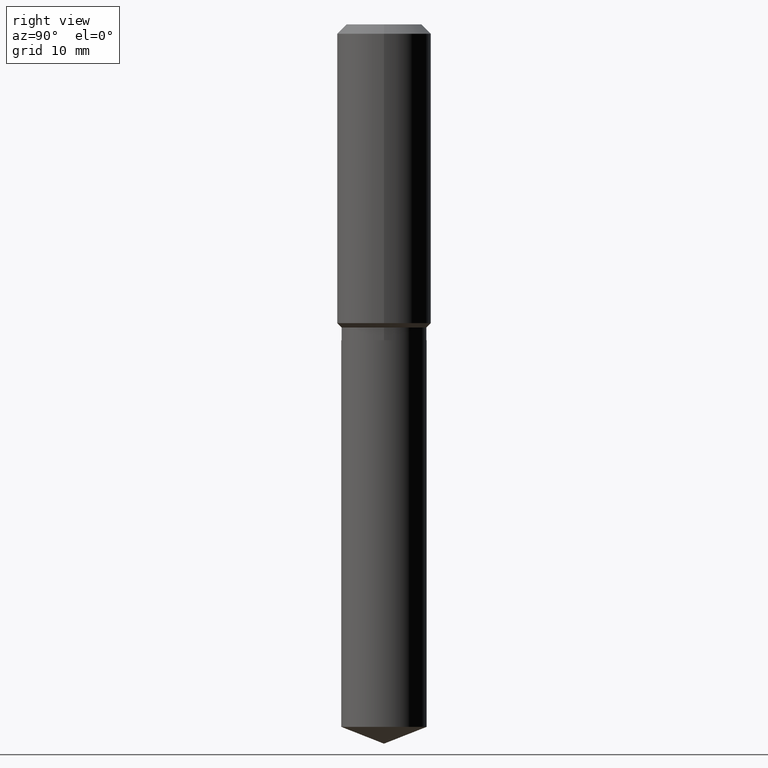
[diagram: clean part render]
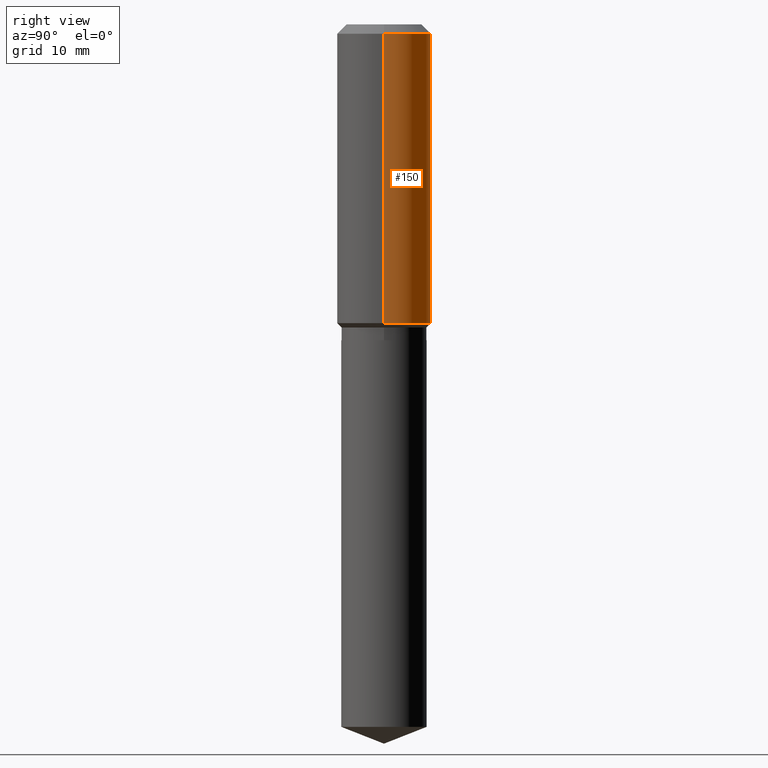
[diagram: same view with one face highlighted and labeled with its STEP entity id]
A machine part, right view. The second image highlights one B-rep face of the part: STEP entity #150.
In plain terms, the highlighted cylindrical surface (partial cylindrical patch) has radius 7.0002 mm, axis along (-0, 0, 1).
Its self-contained STEP definition (entity closure, byte-faithful):
#10 = CARTESIAN_POINT ( 'NONE',  ( 1.347942405969256063E-30, -1.924504513970354330E-16, -0.05512000000000035621 ) ) ;
#27 = CARTESIAN_POINT ( 'NONE',  ( 0.2756000000000001227, -1.924504513970336137E-15, 1.343874319409360548E-29 ) ) ;
#29 = VECTOR ( 'NONE', #488, 39.37007874015748143 ) ;
#31 = LINE ( 'NONE', #75, #160 ) ;
#51 = VERTEX_POINT ( 'NONE', #358 ) ;
#59 = CARTESIAN_POINT ( 'NONE',  ( -0.2756000000000000116, -1.192666469297548903E-15, -0.05512000000000035621 ) ) ;
#65 = VERTEX_POINT ( 'NONE', #111 ) ;
#75 = CARTESIAN_POINT ( 'NONE',  ( -0.2756000000000001227, 1.958255779754836984E-15, -1.355658510874252567E-29 ) ) ;
#90 = DIRECTION ( 'NONE',  ( 1.000000000000000000, -6.982962677686267499E-15, 0.000000000000000000 ) ) ;
#94 = DIRECTION ( 'NONE',  ( -2.445468806185136597E-29, 3.491481338843145583E-15, 1.000000000000000000 ) ) ;
#101 = AXIS2_PLACEMENT_3D ( 'NONE', #10, #166, #410 ) ;
#106 = DIRECTION ( 'NONE',  ( -2.445468806185136597E-29, 3.491481338843145583E-15, 1.000000000000000000 ) ) ;
#111 = CARTESIAN_POINT ( 'NONE',  ( 0.2756000000000002337, -8.033898560678073390E-15, -1.749800000000000244 ) ) ;
#140 = VERTEX_POINT ( 'NONE', #198 ) ;
#144 = DIRECTION ( 'NONE',  ( 1.000000000000000000, -6.982962677686267499E-15, 4.876176775795935793E-29 ) ) ;
#146 = CIRCLE ( 'NONE', #407, 0.2756000000000002337 ) ;
#150 = ADVANCED_FACE ( 'NONE', ( #271 ), #429, .T. ) ;
#155 = DIRECTION ( 'NONE',  ( -2.445468806185136877E-29, 3.491481338843145188E-15, 1.000000000000000000 ) ) ;
#160 = VECTOR ( 'NONE', #155, 39.37007874015748143 ) ;
#166 = DIRECTION ( 'NONE',  ( -2.445468806185136597E-29, 3.491481338843145583E-15, 1.000000000000000000 ) ) ;
#170 = EDGE_CURVE ( 'NONE', #65, #51, #400, .T. ) ;
#198 = CARTESIAN_POINT ( 'NONE',  ( -0.2756000000000002337, -4.151138266952899480E-15, -1.749800000000000244 ) ) ;
#216 = EDGE_CURVE ( 'NONE', #51, #458, #296, .T. ) ;
#220 = EDGE_CURVE ( 'NONE', #140, #458, #31, .T. ) ;
#270 = ORIENTED_EDGE ( 'NONE', *, *, #170, .F. ) ;
#271 = FACE_OUTER_BOUND ( 'NONE', #475, .T. ) ;
#273 = ORIENTED_EDGE ( 'NONE', *, *, #456, .T. ) ;
#274 = CARTESIAN_POINT ( 'NONE',  ( 4.279081317062752596E-29, -6.109394046707736858E-15, -1.749800000000000244 ) ) ;
#296 = CIRCLE ( 'NONE', #101, 0.2756000000000000116 ) ;
#302 = AXIS2_PLACEMENT_3D ( 'NONE', #312, #106, #144 ) ;
#312 = CARTESIAN_POINT ( 'NONE',  ( 0.000000000000000000, 0.000000000000000000, 0.000000000000000000 ) ) ;
#358 = CARTESIAN_POINT ( 'NONE',  ( 0.2756000000000000116, -2.116954965367370658E-15, -0.05512000000000035621 ) ) ;
#381 = ORIENTED_EDGE ( 'NONE', *, *, #220, .T. ) ;
#400 = LINE ( 'NONE', #27, #29 ) ;
#407 = AXIS2_PLACEMENT_3D ( 'NONE', #274, #94, #90 ) ;
#410 = DIRECTION ( 'NONE',  ( 1.000000000000000000, -6.982962677686265922E-15, 0.000000000000000000 ) ) ;
#429 = CYLINDRICAL_SURFACE ( 'NONE', #302, 0.2756000000000001227 ) ;
#453 = ORIENTED_EDGE ( 'NONE', *, *, #216, .F. ) ;
#456 = EDGE_CURVE ( 'NONE', #65, #140, #146, .T. ) ;
#458 = VERTEX_POINT ( 'NONE', #59 ) ;
#475 = EDGE_LOOP ( 'NONE', ( #273, #381, #453, #270 ) ) ;
#488 = DIRECTION ( 'NONE',  ( -2.445468806185136877E-29, 3.491481338843145188E-15, 1.000000000000000000 ) ) ;